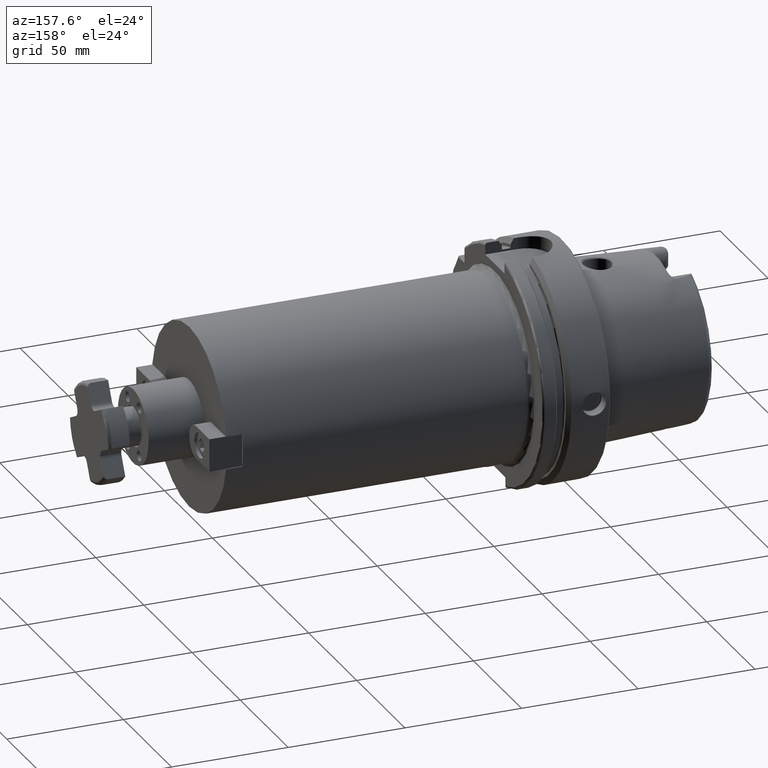
[diagram: clean part render]
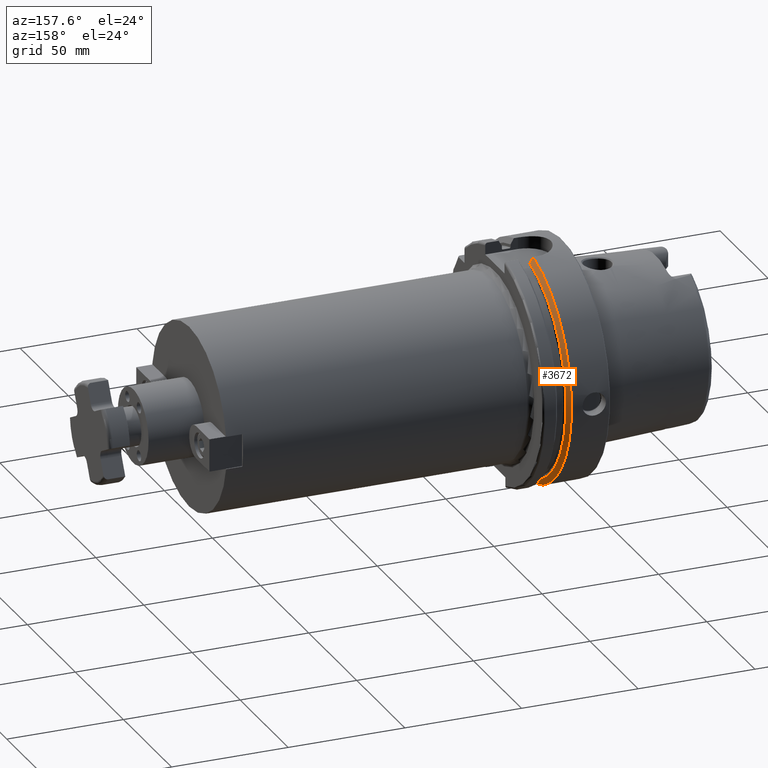
[diagram: same view with one face highlighted and labeled with its STEP entity id]
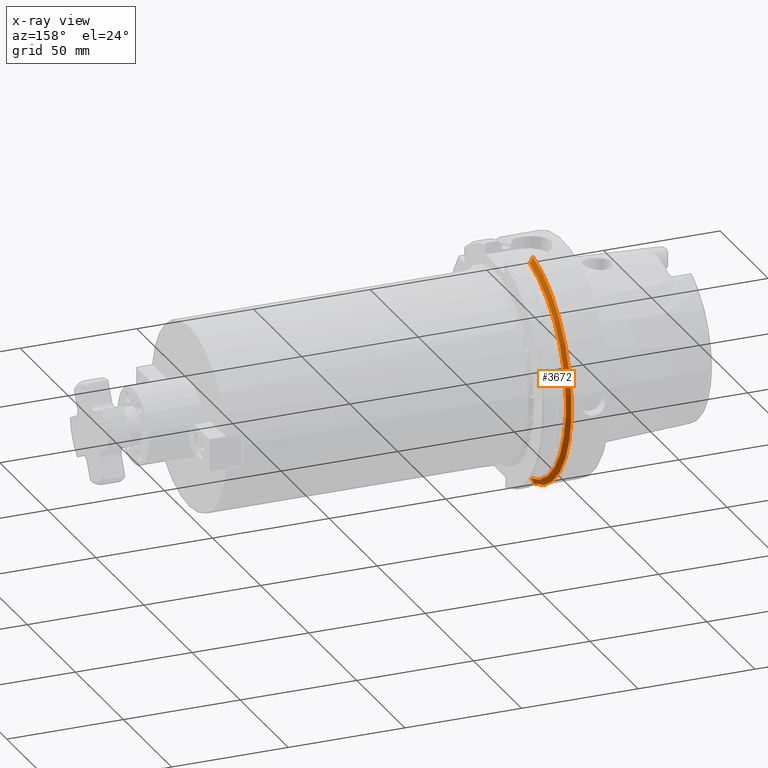
[diagram: x-ray of the same camera — body ghosted, the highlighted face saturated]
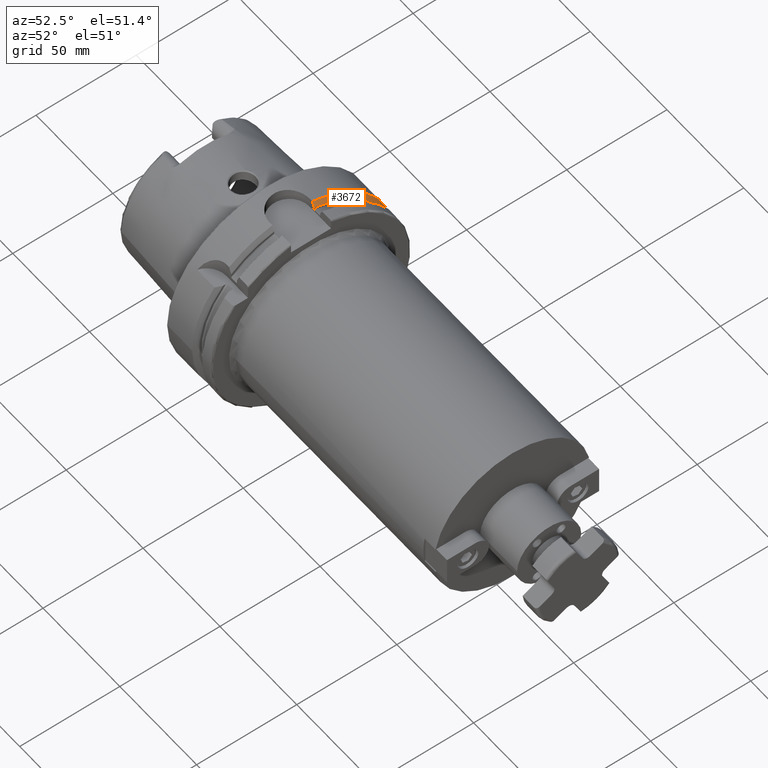
[diagram: same view with one face highlighted and labeled with its STEP entity id]
A machine part, auxiliary view. The second image highlights one B-rep face of the part: STEP entity #3672.
The next image is the same camera in x-ray: the body ghosted, the highlighted face saturated — about 0% of this face is hidden behind the body in this view.
A second angle (auxiliary view) of the same face is appended — the face is thin or edge-on in the first view.
In plain terms, the highlighted conical surface has half-angle 60 deg.
Its self-contained STEP definition (entity closure, byte-faithful):
#578=(
BOUNDED_CURVE()
B_SPLINE_CURVE(2,(#6747,#6748,#6749),.UNSPECIFIED.,.F.,.F.)
B_SPLINE_CURVE_WITH_KNOTS((3,3),(0.,0.282923490805558),.UNSPECIFIED.)
CURVE()
GEOMETRIC_REPRESENTATION_ITEM()
RATIONAL_B_SPLINE_CURVE((1.,1.00031934109636,1.))
REPRESENTATION_ITEM('')
);
#583=(
BOUNDED_CURVE()
B_SPLINE_CURVE(2,(#6912,#6913,#6914),.UNSPECIFIED.,.F.,.F.)
B_SPLINE_CURVE_WITH_KNOTS((3,3),(0.,0.281931851964124),.UNSPECIFIED.)
CURVE()
GEOMETRIC_REPRESENTATION_ITEM()
RATIONAL_B_SPLINE_CURVE((1.,1.00031639798907,1.))
REPRESENTATION_ITEM('')
);
#926=FACE_OUTER_BOUND('',#1122,.T.);
#1122=EDGE_LOOP('',(#3077,#3078,#3079,#3080));
#1686=CIRCLE('',#4066,50.);
#1710=CIRCLE('',#4115,47.5975952641917);
#1994=VERTEX_POINT('',#6628);
#1995=VERTEX_POINT('',#6630);
#2013=VERTEX_POINT('',#6746);
#2038=VERTEX_POINT('',#6908);
#2353=EDGE_CURVE('',#1995,#1994,#1686,.T.);
#2383=EDGE_CURVE('',#2013,#1995,#578,.T.);
#2423=EDGE_CURVE('',#2013,#2038,#1710,.T.);
#2425=EDGE_CURVE('',#1994,#2038,#583,.T.);
#3077=ORIENTED_EDGE('',*,*,#2383,.T.);
#3078=ORIENTED_EDGE('',*,*,#2353,.T.);
#3079=ORIENTED_EDGE('',*,*,#2425,.T.);
#3080=ORIENTED_EDGE('',*,*,#2423,.F.);
#3579=CONICAL_SURFACE('',#4116,48.7987976320958,1.0471975511966);
#3672=ADVANCED_FACE('',(#926),#3579,.T.);
#4066=AXIS2_PLACEMENT_3D('',#6631,#4750,#4751);
#4115=AXIS2_PLACEMENT_3D('',#6909,#4873,#4874);
#4116=AXIS2_PLACEMENT_3D('',#6911,#4876,#4877);
#4750=DIRECTION('center_axis',(1.,0.,0.));
#4751=DIRECTION('ref_axis',(0.,0.,-1.));
#4873=DIRECTION('center_axis',(1.,0.,0.));
#4874=DIRECTION('ref_axis',(0.,0.,-1.));
#4876=DIRECTION('center_axis',(-1.,0.,0.));
#4877=DIRECTION('ref_axis',(0.,1.,0.));
#6628=CARTESIAN_POINT('',(16.7379709790786,10.,48.9897948556636));
#6630=CARTESIAN_POINT('',(16.7379709790786,11.,-48.7749935930288));
#6631=CARTESIAN_POINT('Origin',(16.7379709790786,0.,0.));
#6746=CARTESIAN_POINT('',(18.125,11.,-46.3090819919139));
#6747=CARTESIAN_POINT('Ctrl Pts',(18.125,11.,-46.3090819919139));
#6748=CARTESIAN_POINT('Ctrl Pts',(17.4494711035784,11.,-47.5116880808765));
#6749=CARTESIAN_POINT('Ctrl Pts',(16.7379709790786,11.,-48.7749935930288));
#6908=CARTESIAN_POINT('',(18.125,10.,46.5352670018536));
#6909=CARTESIAN_POINT('Origin',(18.125,0.,0.));
#6911=CARTESIAN_POINT('Origin',(17.4314854895393,0.,0.));
#6912=CARTESIAN_POINT('Ctrl Pts',(16.7379709790786,10.,48.9897948556636));
#6913=CARTESIAN_POINT('Ctrl Pts',(17.4493054275198,10.,47.7323213252028));
#6914=CARTESIAN_POINT('Ctrl Pts',(18.125,10.,46.5352670018536));